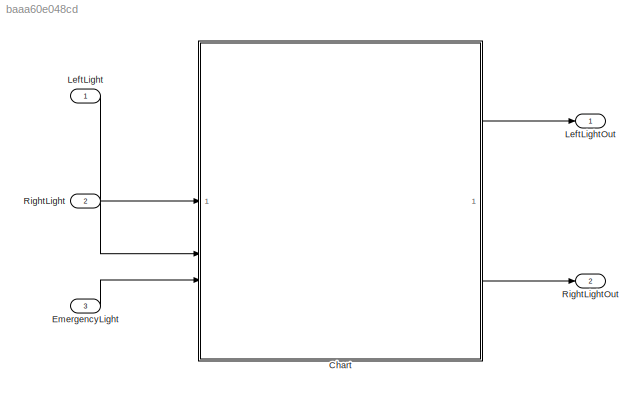
MODEL slx_baaa60e048cd
KIND model
CONFIG AbsTol = auto
CONFIG EnableMultiTasking = off
CONFIG FixedStep = auto
CONFIG MaxStep = auto
CONFIG MinStep = auto
CONFIG RelTol = 1e-3
CONFIG SampleTimeConstraint = Unconstrained
CONFIG SolverName = VariableStepAuto
CONFIG StartTime = 0.0
CONFIG StopTime = inf
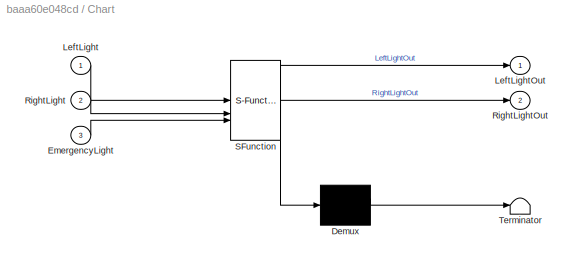
BLOCK [SubSystem] Chart
  ErrorFcn = Stateflow.Translate.translate
  PermitHierarchicalResolution = ExplicitOnly
  SFBlockType = Chart
  TreatAsAtomicUnit = on
BLOCK [Demux] Chart/ Demux 
  Outputs = 1
BLOCK [S-Function] Chart/ SFunction 
  EnableBusSupport = on
  FunctionName = sf_sfun
  PortCounts = [3 3]
  SFcnIsStateOwnerBlock = off
  SFunctionDeploymentMode = off
  Tag = Stateflow S-Function 3
BLOCK [Terminator] Chart/ Terminator 
BLOCK [Inport] Chart/EmergencyLight
  Port = 3
BLOCK [Inport] Chart/LeftLight
BLOCK [Outport] Chart/LeftLightOut
BLOCK [Inport] Chart/RightLight
  Port = 2
BLOCK [Outport] Chart/RightLightOut
  Port = 2
BLOCK [Inport] EmergencyLight
  OutDataTypeStr = boolean
  Port = 3
BLOCK [Inport] LeftLight
  OutDataTypeStr = boolean
BLOCK [Outport] LeftLightOut
  OutDataTypeStr = boolean
  PortDimensions = 1
BLOCK [Inport] RightLight
  OutDataTypeStr = boolean
  Port = 2
BLOCK [Outport] RightLightOut
  OutDataTypeStr = boolean
  Port = 2
  PortDimensions = 1
LINE Chart:1 -> LeftLightOut:1
LINE Chart:2 -> RightLightOut:1
LINE EmergencyLight:1 -> Chart:3
LINE LeftLight:1 -> Chart:1
LINE RightLight:1 -> Chart:2
CHART Chart states=16 transitions=27
  STATE_LABEL 'NORMAL'
  STATE_LABEL 'TURN'
  STATE_LABEL 'LEFT'
  STATE_LABEL 'INACTIVE\nen:\nLeftLightOut = false;'
  STATE_LABEL 'ACTIVE'
  STATE_LABEL 'ON\nen:\nLeftLightOut = true;'
  STATE_LABEL 'OFF\nen:\nLeftLightOut = false;'
  STATE_LABEL '[(true == after(50, tick))]'
  STATE_LABEL '[(true == after(50, tick))]'
  STATE_LABEL '[(true == LeftLight)]'
  STATE_LABEL '[(true == LeftLight)]'
  STATE_LABEL '[(false == LeftLight)]'
  STATE_LABEL 'RIGHT'
  STATE_LABEL 'INACTIVE\nen:\nRightLightOut = false;'
  STATE_LABEL 'ACTIVE'
  STATE_LABEL 'ON\nen:\nRightLightOut = true;'
  STATE_LABEL 'OFF\nen:\nRightLightOut = false;'
  STATE_LABEL '[(true == after(50, tick))]'
  STATE_LABEL '[(true == after(50, tick))]'
  STATE_LABEL '[(true == RightLight)]'
  STATE_LABEL '[(true == RightLight)]'
  STATE_LABEL '[(false == RightLight)]'
  STATE_LABEL 'OFF\nen:\nLeftLightOut = false;\nRightLightOut = false;'
  STATE_LABEL '[(true == LeftLight)...\n|| (true == RightLight)]'
  STATE_LABEL '[(false == LeftLight)...\n|| (false == RightLight)]'
  STATE_LABEL 'TURN'
  STATE_LABEL 'LEFT'
  STATE_LABEL 'INACTIVE\nen:\nLeftLightOut = false;'
  STATE_LABEL 'ACTIVE'
  STATE_LABEL 'ON\nen:\nLeftLightOut = true;'
  STATE_LABEL 'OFF\nen:\nLeftLightOut = false;'
  STATE_LABEL '[(true == after(50, tick))]'
  STATE_LABEL '[(true == after(50, tick))]'
  STATE_LABEL '[(true == LeftLight)]'
  STATE_LABEL '[(true == LeftLight)]'
  STATE_LABEL '[(false == LeftLight)]'
  STATE_LABEL 'RIGHT'
  STATE_LABEL 'INACTIVE\nen:\nRightLightOut = false;'
  STATE_LABEL 'ACTIVE'
  STATE_LABEL 'ON\nen:\nRightLightOut = true;'
CHART  states=0 transitions=0
